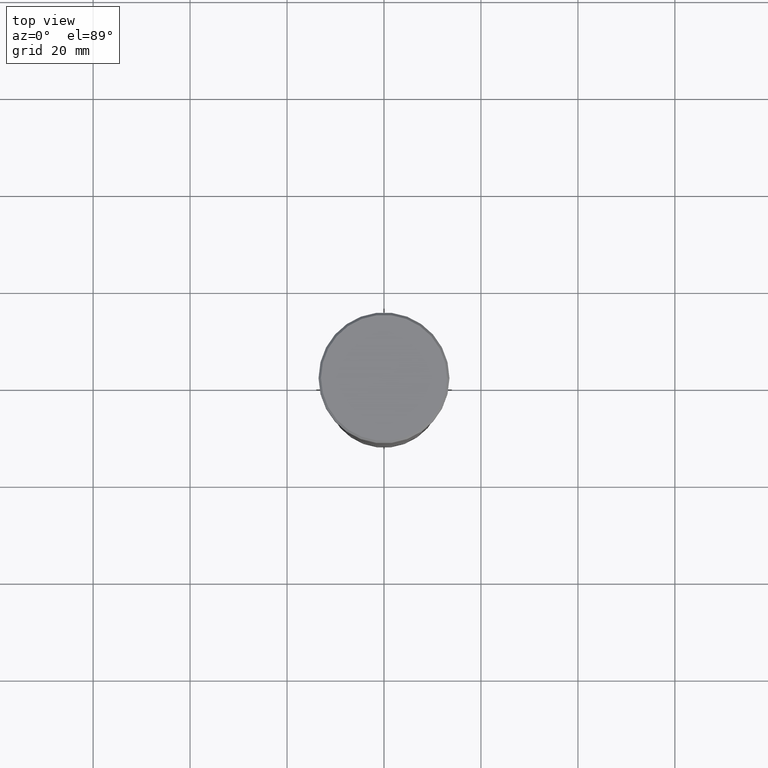
[diagram: clean part render]
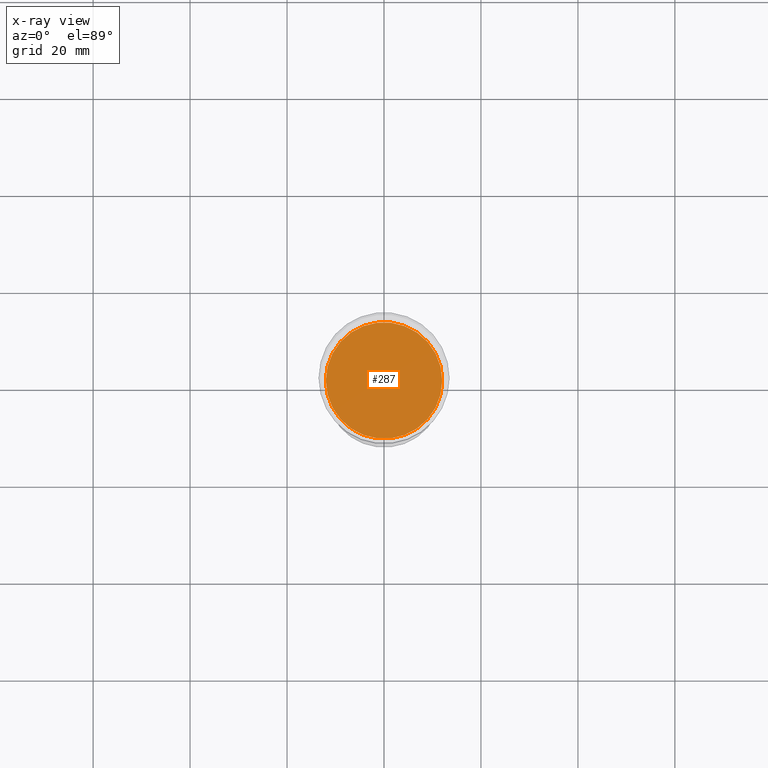
[diagram: x-ray — body ghosted, one internal face saturated and labeled with its STEP entity id]
A machine part, top view, then the same camera in x-ray: the body is ghosted and one INTERNAL B-rep face — a face not visible from any outside direction — is saturated and labeled: STEP entity #287.
In plain terms, the highlighted planar face has unit normal (0, 0, -1).
Its self-contained STEP definition (entity closure, byte-faithful):
#1 = EDGE_CURVE ( 'NONE', #1055, #142, #638, .T. ) ;
#138 = FACE_OUTER_BOUND ( 'NONE', #1029, .T. ) ;
#142 = VERTEX_POINT ( 'NONE', #700 ) ;
#287 = ADVANCED_FACE ( 'NONE', ( #138 ), #839, .T. ) ;
#303 = CARTESIAN_POINT ( 'NONE',  ( 0.000000000000000000, 0.000000000000000000, -33.00000000000000000 ) ) ;
#308 = ORIENTED_EDGE ( 'NONE', *, *, #559, .T. ) ;
#344 = DIRECTION ( 'NONE',  ( -1.000000000000000000, 0.000000000000000000, 0.000000000000000000 ) ) ;
#397 = AXIS2_PLACEMENT_3D ( 'NONE', #436, #697, #344 ) ;
#436 = CARTESIAN_POINT ( 'NONE',  ( 0.000000000000000000, 0.000000000000000000, -33.00000000000000000 ) ) ;
#507 = DIRECTION ( 'NONE',  ( 0.000000000000000000, 0.000000000000000000, -1.000000000000000000 ) ) ;
#559 = EDGE_CURVE ( 'NONE', #142, #1055, #1102, .T. ) ;
#587 = AXIS2_PLACEMENT_3D ( 'NONE', #891, #507, #615 ) ;
#615 = DIRECTION ( 'NONE',  ( -1.000000000000000000, 0.000000000000000000, 0.000000000000000000 ) ) ;
#623 = DIRECTION ( 'NONE',  ( -1.000000000000000000, 0.000000000000000000, -0.000000000000000000 ) ) ;
#638 = CIRCLE ( 'NONE', #397, 12.00000000000000178 ) ;
#667 = ORIENTED_EDGE ( 'NONE', *, *, #1, .T. ) ;
#697 = DIRECTION ( 'NONE',  ( 0.000000000000000000, 0.000000000000000000, -1.000000000000000000 ) ) ;
#700 = CARTESIAN_POINT ( 'NONE',  ( 12.00000000000000178, 0.000000000000000000, -33.00000000000000000 ) ) ;
#753 = CARTESIAN_POINT ( 'NONE',  ( -12.00000000000000178, 1.469576158976824144E-15, -33.00000000000000000 ) ) ;
#839 = PLANE ( 'NONE',  #1061 ) ;
#891 = CARTESIAN_POINT ( 'NONE',  ( 0.000000000000000000, 0.000000000000000000, -33.00000000000000000 ) ) ;
#917 = DIRECTION ( 'NONE',  ( 0.000000000000000000, 0.000000000000000000, -1.000000000000000000 ) ) ;
#1029 = EDGE_LOOP ( 'NONE', ( #308, #667 ) ) ;
#1055 = VERTEX_POINT ( 'NONE', #753 ) ;
#1061 = AXIS2_PLACEMENT_3D ( 'NONE', #303, #917, #623 ) ;
#1102 = CIRCLE ( 'NONE', #587, 12.00000000000000178 ) ;